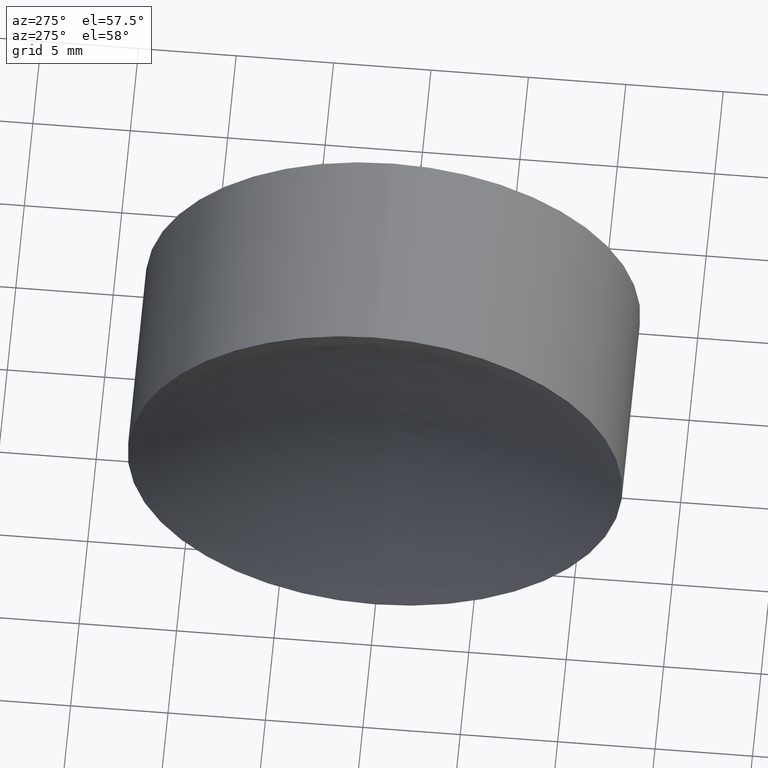
[diagram: clean part render]
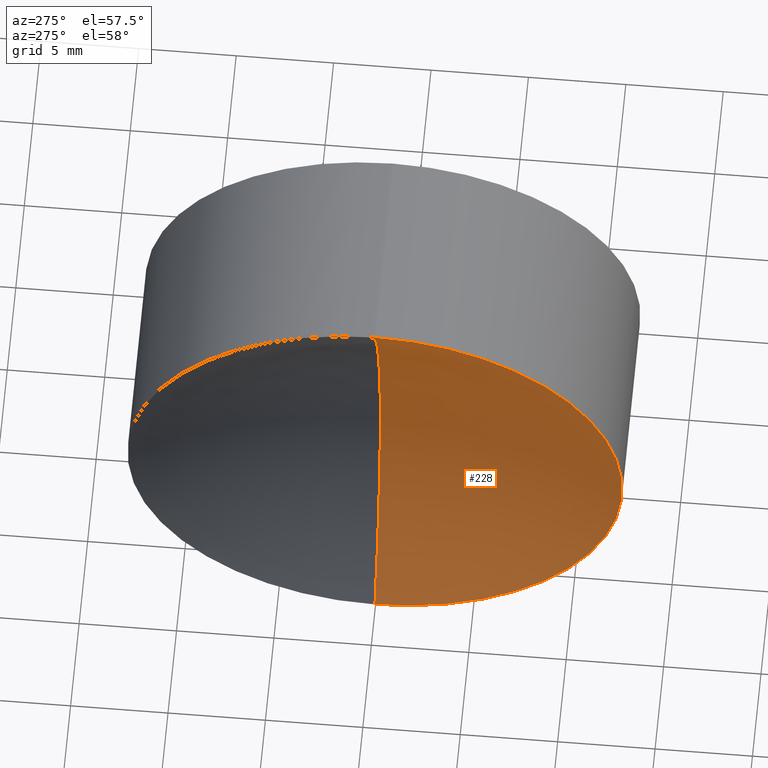
[diagram: same view with one face highlighted and labeled with its STEP entity id]
A machine part, auxiliary view. The second image highlights one B-rep face of the part: STEP entity #228.
In plain terms, the highlighted spherical surface has radius 27.1 mm.
Its self-contained STEP definition (entity closure, byte-faithful):
#1 = EDGE_CURVE ( 'NONE', #156, #158, #60, .T. ) ;
#12 = AXIS2_PLACEMENT_3D ( 'NONE', #249, #59, #230 ) ;
#20 = DIRECTION ( 'NONE',  ( 0.0000000000000000000, -1.000000000000000000, 0.0000000000000000000 ) ) ;
#21 = FACE_OUTER_BOUND ( 'NONE', #191, .T. ) ;
#29 = EDGE_CURVE ( 'NONE', #158, #320, #47, .T. ) ;
#38 = DIRECTION ( 'NONE',  ( -0.0000000000000000000, 1.000000000000000000, 0.0000000000000000000 ) ) ;
#47 = CIRCLE ( 'NONE', #12, 12.70000000000004500 ) ;
#53 = AXIS2_PLACEMENT_3D ( 'NONE', #75, #38, #99 ) ;
#59 = DIRECTION ( 'NONE',  ( -1.000000000000000000, -0.0000000000000000000, 1.836970198721029700E-016 ) ) ;
#60 = CIRCLE ( 'NONE', #312, 27.09999999999998000 ) ;
#69 = DIRECTION ( 'NONE',  ( 0.0000000000000000000, -1.224646799147353500E-016, 1.000000000000000000 ) ) ;
#75 = CARTESIAN_POINT ( 'NONE',  ( 233.1833917553725000, 0.0000000000000000000, -7.846294210438532900E-022 ) ) ;
#89 = ORIENTED_EDGE ( 'NONE', *, *, #1, .T. ) ;
#92 = CARTESIAN_POINT ( 'NONE',  ( 260.2833917553724600, 0.0000000000000000000, -3.318793610318745300E-015 ) ) ;
#93 = DIRECTION ( 'NONE',  ( 2.249639673992786400E-032, 1.000000000000000000, 1.224646799147353200E-016 ) ) ;
#99 = DIRECTION ( 'NONE',  ( 0.0000000000000000000, 0.0000000000000000000, 1.000000000000000000 ) ) ;
#156 = VERTEX_POINT ( 'NONE', #92 ) ;
#158 = VERTEX_POINT ( 'NONE', #183 ) ;
#167 = AXIS2_PLACEMENT_3D ( 'NONE', #219, #20, #188 ) ;
#183 = CARTESIAN_POINT ( 'NONE',  ( 257.1233165672844600, 1.555301434917144000E-015, -12.70000000000004900 ) ) ;
#188 = DIRECTION ( 'NONE',  ( 0.0000000000000000000, 0.0000000000000000000, -1.000000000000000000 ) ) ;
#191 = EDGE_LOOP ( 'NONE', ( #240, #89, #200 ) ) ;
#200 = ORIENTED_EDGE ( 'NONE', *, *, #29, .T. ) ;
#210 = SPHERICAL_SURFACE ( 'NONE', #53, 27.09999999999998000 ) ;
#219 = CARTESIAN_POINT ( 'NONE',  ( 233.1833917553725000, 0.0000000000000000000, -7.846294210438532900E-022 ) ) ;
#222 = CARTESIAN_POINT ( 'NONE',  ( 257.1233165672844600, 0.0000000000000000000, 12.69999999999999900 ) ) ;
#228 = ADVANCED_FACE ( 'NONE', ( #21 ), #210, .F. ) ;
#230 = DIRECTION ( 'NONE',  ( 0.0000000000000000000, 0.0000000000000000000, 1.000000000000000000 ) ) ;
#240 = ORIENTED_EDGE ( 'NONE', *, *, #335, .F. ) ;
#249 = CARTESIAN_POINT ( 'NONE',  ( 257.1233165672844600, 0.0000000000000000000, -4.738269518283348700E-014 ) ) ;
#287 = CARTESIAN_POINT ( 'NONE',  ( 233.1833917553725000, 0.0000000000000000000, -7.846294210438532900E-022 ) ) ;
#312 = AXIS2_PLACEMENT_3D ( 'NONE', #287, #93, #69 ) ;
#320 = VERTEX_POINT ( 'NONE', #222 ) ;
#322 = CIRCLE ( 'NONE', #167, 27.09999999999998000 ) ;
#335 = EDGE_CURVE ( 'NONE', #156, #320, #322, .T. ) ;